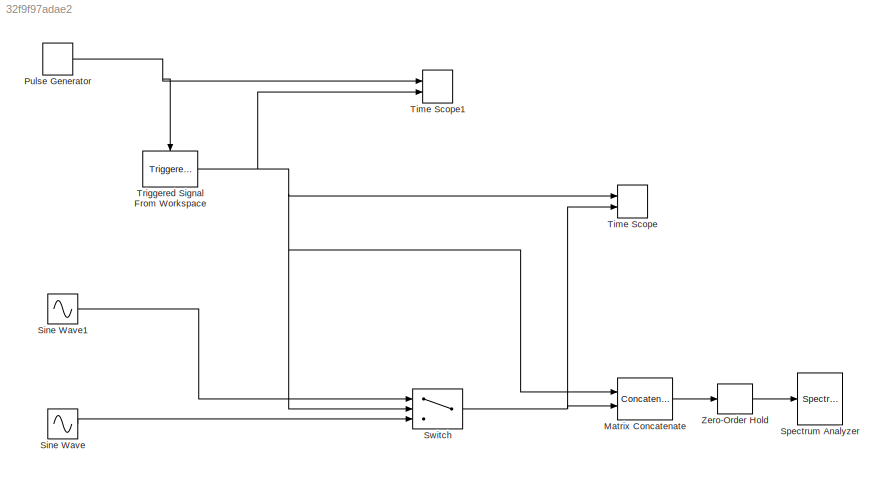
MODEL slx_32f9f97adae2
KIND model
CONFIG AbsTol = auto
CONFIG FixedStep = auto
CONFIG MaxStep = auto
CONFIG MinStep = auto
CONFIG RelTol = 1e-3
CONFIG SampleTimeConstraint = Unconstrained
CONFIG Solver = ode45
CONFIG SolverMode = Auto
CONFIG SolverName = ode45
CONFIG StartTime = 0.0
CONFIG StopTime = 10.0
BLOCK [Concatenate] Matrix Concatenate
  ConcatenateDimension = 2
  Mode = Multidimensional array
  Ports = [2, 1]
BLOCK [DiscretePulseGenerator] Pulse Generator
  Amplitude = 0.5
  Period = 0.5
  Ports = [0, 1]
  PulseType = Time based
  PulseWidth = 50
BLOCK [Sin] Sine Wave
  Amplitude = 2
  Frequency = 2*pi*10
  Ports = [0, 1]
  SampleTime = 0.0025
BLOCK [Sin] Sine Wave1
  Amplitude = 2
  Frequency = 2*pi*10
  Phase = pi
  Ports = [0, 1]
  SampleTime = 0.0025
BLOCK [SpectrumAnalyzer] Spectrum Analyzer
  Ports = [1]
  ScopeSpecificationString = spbscopes.SpectrumAnalyzerBlockCfg('CurrentConfiguration', extmgr.ConfigurationSet(extmgr.Configuration('Core','General UI',true),extmgr.Configuration('Core','Source UI',true),extmgr.Configuration('Sources','WiredSimulink',true),extmgr.Configuration('Visuals','Spectrum',true,'AxesProperties',struct('Color',[0 0 0],'XColor',[0.686274509803922 0.686274509803922 0.686274509803922],'YColor',[0.6862745...<+5994ch>
BLOCK [Switch] Switch
  Criteria = u2 > Threshold
  InputSameDT = off
  OutDataTypeStr = double
  SaturateOnIntegerOverflow = off
BLOCK [TimeScope] Time Scope
  DefaultConfigurationName = spbscopes.TimeScopeBlockCfg
  NumInputPorts = 2
  Ports = [2]
  ScopeSpecificationString = spbscopes.TimeScopeBlockCfg('CurrentConfiguration', extmgr.ConfigurationSet(extmgr.Configuration('Core','General UI',true),extmgr.Configuration('Core','Source UI',true),extmgr.Configuration('Sources','WiredSimulink',true),extmgr.Configuration('Visuals','Time Domain',true,'DisplayPropertyDefaults',struct('MinYLimReal','-2.47832','MaxYLimReal','2.63728','YLabelReal','Amplitude','MinYLimMag','0','Max...<+1418ch>
  UserDataPersistent = on
BLOCK [TimeScope] Time Scope1
  DefaultConfigurationName = spbscopes.TimeScopeBlockCfg
  NumInputPorts = 2
  Ports = [2]
  ScopeSpecificationString = spbscopes.TimeScopeBlockCfg('CurrentConfiguration', extmgr.ConfigurationSet(extmgr.Configuration('Core','General UI',true),extmgr.Configuration('Core','Source UI',true),extmgr.Configuration('Sources','WiredSimulink',true,'DataLoggingVariableName','ScopeData1'),extmgr.Configuration('Visuals','Time Domain',true,'DisplayPropertyDefaults',struct('MinYLimReal','-0.125','MaxYLimReal','1.125','YLabelReal...<+1409ch>
  UserDataPersistent = on
BLOCK [Reference] Triggered Signal From Workspace  REF=dspsigops/Triggered Signal
From Workspace
  OutputAfterFinalValue = Setting to zero
  Ports = [0, 1, 0, 1]
  SamplesPerFrame = 1
  Signal = [1 0 1 0 0 0 1 1 1 0 1 1 0 0 0]
  SourceBlock = dspsigops/Triggered Signal\nFrom Workspace
  SourceType = Triggered Signal From Workspace
  TriggerType = Rising edge
  ic = 0
BLOCK [ZeroOrderHold] Zero-Order Hold
  SampleTime = 0.0025
LINE Matrix Concatenate:1 -> Zero-Order Hold:1
NET Pulse Generator:1 -> Time Scope1:1, Triggered Signal From Workspace:trigger
LINE Sine Wave1:1 -> Switch:1
LINE Sine Wave:1 -> Switch:3
NET Switch:1 -> Matrix Concatenate:2, Time Scope:2
NET Triggered Signal From Workspace:1 -> Matrix Concatenate:1, Switch:2, Time Scope1:2, Time Scope:1
LINE Zero-Order Hold:1 -> Spectrum Analyzer:1
note: NET lines group one-source signal fan-out (src -> all destinations, sorted); 1:1 wires keep LINE
